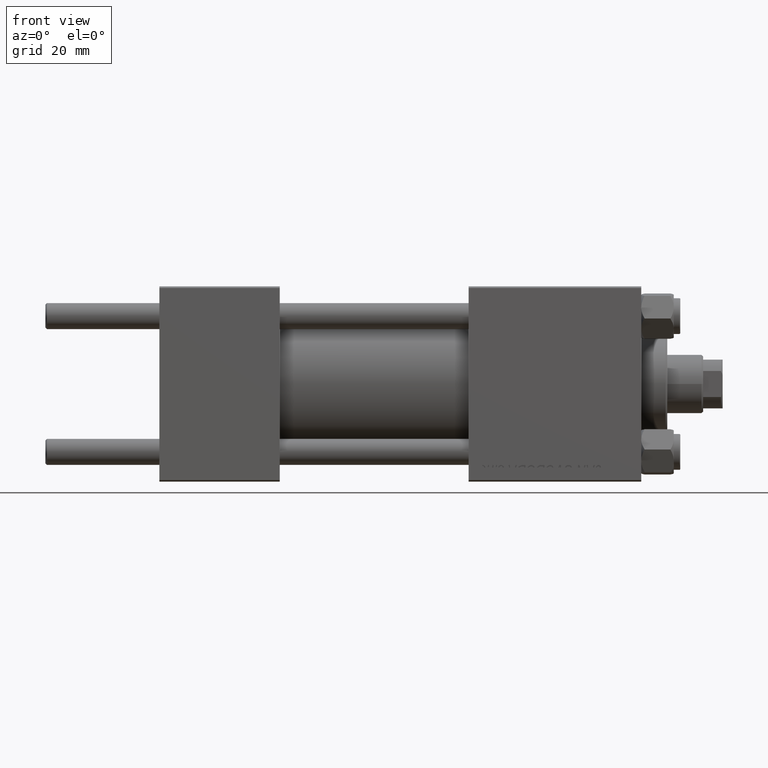
[diagram: clean part render]
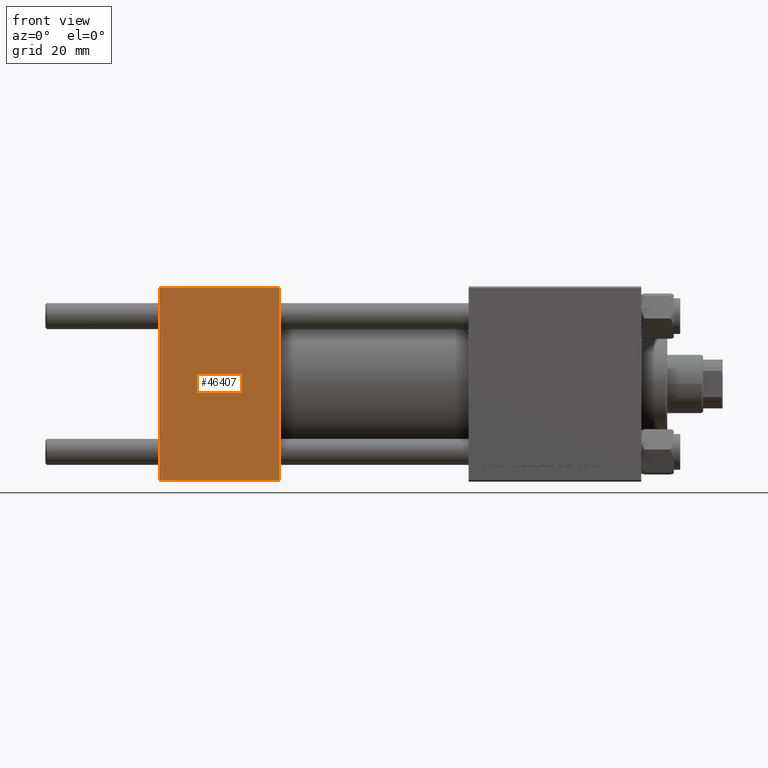
[diagram: same view with one face highlighted and labeled with its STEP entity id]
A machine part, front view. The second image highlights one B-rep face of the part: STEP entity #46407.
In plain terms, the highlighted planar face has unit normal (0, 1, 0).
Its self-contained STEP definition (entity closure, byte-faithful):
#357 = DIRECTION ( 'NONE',  ( 0.000000000000000000, 0.000000000000000000, -1.000000000000000000 ) ) ;
#1070 = ORIENTED_EDGE ( 'NONE', *, *, #48842, .F. ) ;
#2782 = VECTOR ( 'NONE', #357, 1000.000000000000000 ) ;
#2909 = EDGE_CURVE ( 'NONE', #38099, #49445, #4870, .T. ) ;
#4870 = LINE ( 'NONE', #27927, #47337 ) ;
#5188 = CARTESIAN_POINT ( 'NONE',  ( 37.00000000000000000, -30.00000000000000000, -29.50000000000001776 ) ) ;
#10594 = VECTOR ( 'NONE', #32775, 1000.000000000000000 ) ;
#12649 = VERTEX_POINT ( 'NONE', #29223 ) ;
#14809 = VERTEX_POINT ( 'NONE', #16857 ) ;
#15086 = CARTESIAN_POINT ( 'NONE',  ( 37.00000000000000000, -30.00000000000000000, 29.99999999999999289 ) ) ;
#16537 = DIRECTION ( 'NONE',  ( 0.000000000000000000, 0.000000000000000000, -1.000000000000000000 ) ) ;
#16857 = CARTESIAN_POINT ( 'NONE',  ( 37.00000000000000000, -30.00000000000000000, -29.50000000000001776 ) ) ;
#19108 = CARTESIAN_POINT ( 'NONE',  ( 37.00000000000000000, -30.00000000000000000, 29.99999999999999289 ) ) ;
#19139 = PLANE ( 'NONE',  #31009 ) ;
#20061 = VECTOR ( 'NONE', #30761, 1000.000000000000000 ) ;
#21564 = ORIENTED_EDGE ( 'NONE', *, *, #34405, .T. ) ;
#21918 = EDGE_CURVE ( 'NONE', #12649, #38099, #26731, .T. ) ;
#23862 = CARTESIAN_POINT ( 'NONE',  ( 0.000000000000000000, -30.00000000000000000, 29.49999999999999289 ) ) ;
#24823 = EDGE_LOOP ( 'NONE', ( #32871, #21564, #1070, #34870 ) ) ;
#26731 = LINE ( 'NONE', #49478, #20061 ) ;
#27927 = CARTESIAN_POINT ( 'NONE',  ( 0.000000000000000000, -30.00000000000000000, 29.99999999999999289 ) ) ;
#29223 = CARTESIAN_POINT ( 'NONE',  ( 37.00000000000000000, -30.00000000000000000, 29.49999999999999289 ) ) ;
#30761 = DIRECTION ( 'NONE',  ( -1.000000000000000000, 0.000000000000000000, 0.000000000000000000 ) ) ;
#31009 = AXIS2_PLACEMENT_3D ( 'NONE', #15086, #46683, #31013 ) ;
#31013 = DIRECTION ( 'NONE',  ( 0.000000000000000000, -0.000000000000000000, 1.000000000000000000 ) ) ;
#32286 = LINE ( 'NONE', #5188, #10594 ) ;
#32775 = DIRECTION ( 'NONE',  ( 1.000000000000000000, 0.000000000000000000, 0.000000000000000000 ) ) ;
#32871 = ORIENTED_EDGE ( 'NONE', *, *, #2909, .T. ) ;
#34311 = FACE_OUTER_BOUND ( 'NONE', #24823, .T. ) ;
#34405 = EDGE_CURVE ( 'NONE', #49445, #14809, #32286, .T. ) ;
#34870 = ORIENTED_EDGE ( 'NONE', *, *, #21918, .T. ) ;
#38099 = VERTEX_POINT ( 'NONE', #23862 ) ;
#46403 = LINE ( 'NONE', #19108, #2782 ) ;
#46407 = ADVANCED_FACE ( 'NONE', ( #34311 ), #19139, .F. ) ;
#46683 = DIRECTION ( 'NONE',  ( -0.000000000000000000, 1.000000000000000000, 0.000000000000000000 ) ) ;
#47337 = VECTOR ( 'NONE', #16537, 1000.000000000000000 ) ;
#47405 = CARTESIAN_POINT ( 'NONE',  ( 0.000000000000000000, -30.00000000000000000, -29.50000000000001776 ) ) ;
#48842 = EDGE_CURVE ( 'NONE', #12649, #14809, #46403, .T. ) ;
#49445 = VERTEX_POINT ( 'NONE', #47405 ) ;
#49478 = CARTESIAN_POINT ( 'NONE',  ( 37.00000000000000000, -30.00000000000000000, 29.49999999999999289 ) ) ;